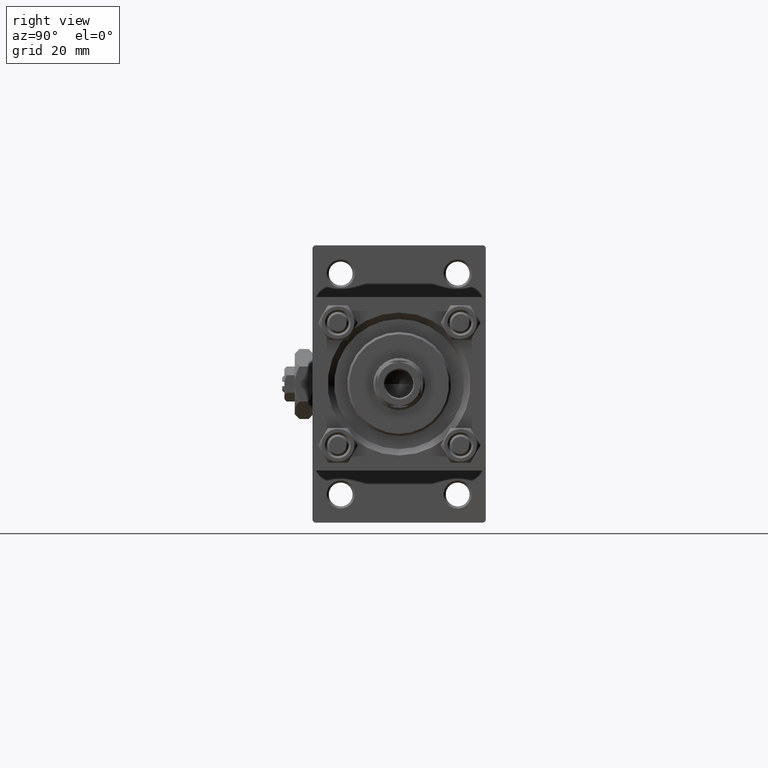
[diagram: clean part render]
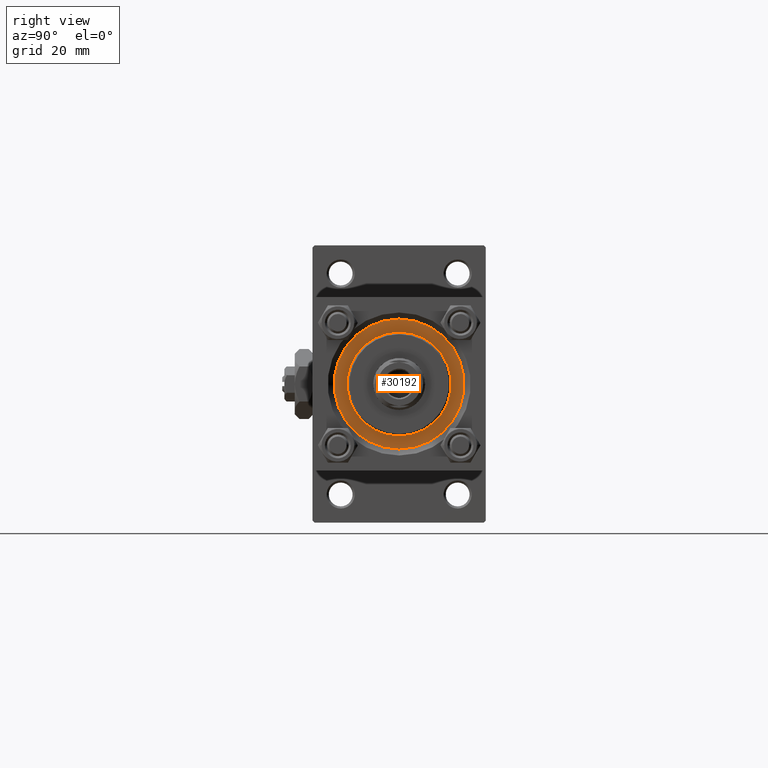
[diagram: same view with one face highlighted and labeled with its STEP entity id]
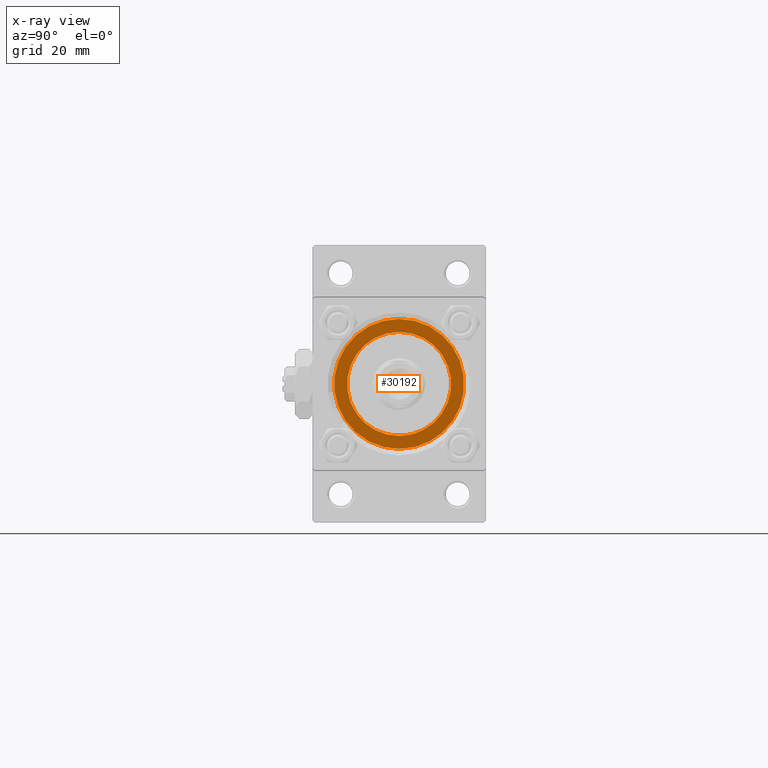
[diagram: x-ray of the same camera — body ghosted, the highlighted face saturated]
A machine part, right view. The second image highlights one B-rep face of the part: STEP entity #30192.
The next image is the same camera in x-ray: the body ghosted, the highlighted face saturated — about 0% of this face is hidden behind the body in this view.
In plain terms, the highlighted planar face has unit normal (1, 0, 0).
Its self-contained STEP definition (entity closure, byte-faithful):
#454 = DIRECTION ( 'NONE',  ( 0.000000000000000000, 0.000000000000000000, 1.000000000000000000 ) ) ;
#805 = VERTEX_POINT ( 'NONE', #8750 ) ;
#1235 = DIRECTION ( 'NONE',  ( 1.000000000000000000, 0.000000000000000000, 0.000000000000000000 ) ) ;
#1565 = DIRECTION ( 'NONE',  ( 0.000000000000000000, 0.000000000000000000, 1.000000000000000000 ) ) ;
#1718 = DIRECTION ( 'NONE',  ( 0.000000000000000000, 0.000000000000000000, 1.000000000000000000 ) ) ;
#1851 = AXIS2_PLACEMENT_3D ( 'NONE', #37419, #1718, #9853 ) ;
#5580 = VERTEX_POINT ( 'NONE', #35705 ) ;
#7939 = EDGE_CURVE ( 'NONE', #5580, #805, #27822, .T. ) ;
#8750 = CARTESIAN_POINT ( 'NONE',  ( 12.00000000000000178, 1.469576158976824144E-15, 28.69999999999999929 ) ) ;
#8772 = CIRCLE ( 'NONE', #28085, 12.00000000000000178 ) ;
#9853 = DIRECTION ( 'NONE',  ( 1.000000000000000000, 0.000000000000000000, 0.000000000000000000 ) ) ;
#12565 = DIRECTION ( 'NONE',  ( 1.000000000000000000, 0.000000000000000000, 0.000000000000000000 ) ) ;
#14185 = PLANE ( 'NONE',  #46114 ) ;
#15873 = ORIENTED_EDGE ( 'NONE', *, *, #32374, .T. ) ;
#16069 = VERTEX_POINT ( 'NONE', #50897 ) ;
#16560 = ORIENTED_EDGE ( 'NONE', *, *, #7939, .F. ) ;
#16838 = CIRCLE ( 'NONE', #36143, 15.00000000000000000 ) ;
#17558 = DIRECTION ( 'NONE',  ( 1.000000000000000000, 0.000000000000000000, 0.000000000000000000 ) ) ;
#17603 = CARTESIAN_POINT ( 'NONE',  ( 0.000000000000000000, 0.000000000000000000, 28.69999999999999929 ) ) ;
#17864 = DIRECTION ( 'NONE',  ( 1.000000000000000000, 0.000000000000000000, -0.000000000000000000 ) ) ;
#18386 = FACE_OUTER_BOUND ( 'NONE', #47254, .T. ) ;
#18970 = ORIENTED_EDGE ( 'NONE', *, *, #38409, .T. ) ;
#20728 = CARTESIAN_POINT ( 'NONE',  ( 0.000000000000000000, 0.000000000000000000, 28.69999999999999929 ) ) ;
#20880 = ORIENTED_EDGE ( 'NONE', *, *, #48146, .F. ) ;
#21297 = VERTEX_POINT ( 'NONE', #32925 ) ;
#22062 = DIRECTION ( 'NONE',  ( 0.000000000000000000, 0.000000000000000000, 1.000000000000000000 ) ) ;
#27822 = CIRCLE ( 'NONE', #1851, 12.00000000000000178 ) ;
#28085 = AXIS2_PLACEMENT_3D ( 'NONE', #36195, #40647, #12565 ) ;
#29302 = CARTESIAN_POINT ( 'NONE',  ( 0.000000000000000000, 0.000000000000000000, 28.69999999999999929 ) ) ;
#29683 = FACE_BOUND ( 'NONE', #33676, .T. ) ;
#30192 = ADVANCED_FACE ( 'NONE', ( #29683, #18386 ), #14185, .T. ) ;
#30378 = AXIS2_PLACEMENT_3D ( 'NONE', #29302, #454, #1235 ) ;
#32374 = EDGE_CURVE ( 'NONE', #21297, #16069, #16838, .T. ) ;
#32874 = CIRCLE ( 'NONE', #30378, 15.00000000000000000 ) ;
#32925 = CARTESIAN_POINT ( 'NONE',  ( -15.00000000000000000, 0.000000000000000000, 28.69999999999999929 ) ) ;
#33676 = EDGE_LOOP ( 'NONE', ( #16560, #20880 ) ) ;
#35705 = CARTESIAN_POINT ( 'NONE',  ( -12.00000000000000178, 0.000000000000000000, 28.69999999999999929 ) ) ;
#36143 = AXIS2_PLACEMENT_3D ( 'NONE', #20728, #1565, #17558 ) ;
#36195 = CARTESIAN_POINT ( 'NONE',  ( 0.000000000000000000, 0.000000000000000000, 28.69999999999999929 ) ) ;
#37419 = CARTESIAN_POINT ( 'NONE',  ( 0.000000000000000000, 0.000000000000000000, 28.69999999999999929 ) ) ;
#38409 = EDGE_CURVE ( 'NONE', #16069, #21297, #32874, .T. ) ;
#40647 = DIRECTION ( 'NONE',  ( 0.000000000000000000, 0.000000000000000000, 1.000000000000000000 ) ) ;
#46114 = AXIS2_PLACEMENT_3D ( 'NONE', #17603, #22062, #17864 ) ;
#47254 = EDGE_LOOP ( 'NONE', ( #15873, #18970 ) ) ;
#48146 = EDGE_CURVE ( 'NONE', #805, #5580, #8772, .T. ) ;
#50897 = CARTESIAN_POINT ( 'NONE',  ( 15.00000000000000000, 1.836970198721029589E-15, 28.69999999999999929 ) ) ;